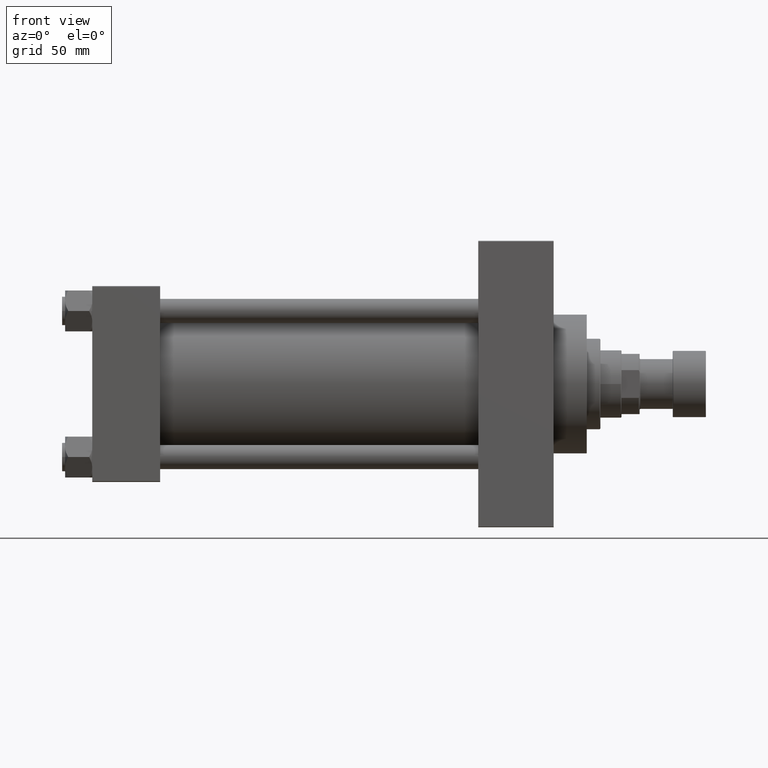
[diagram: clean part render]
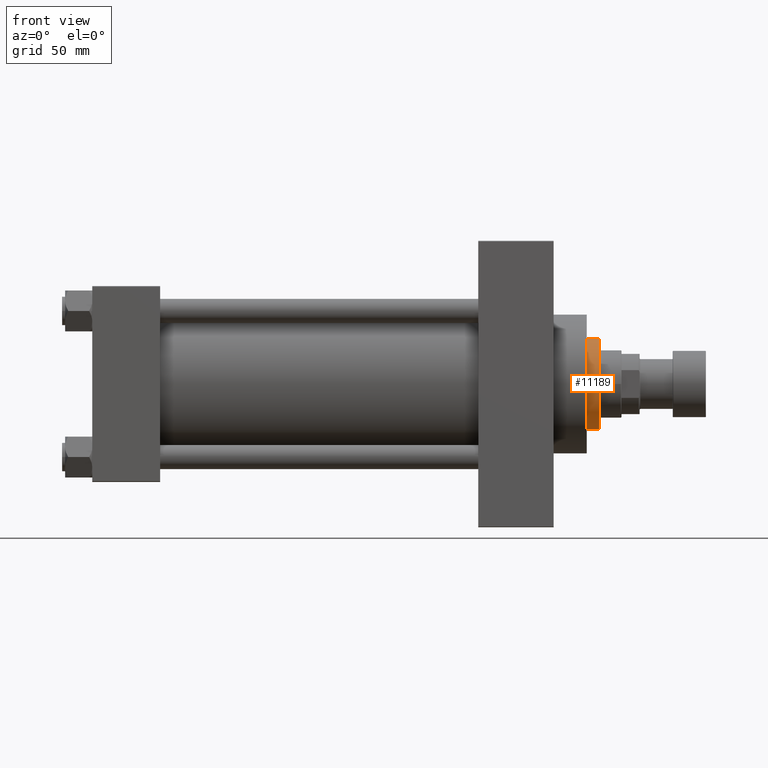
[diagram: same view with one face highlighted and labeled with its STEP entity id]
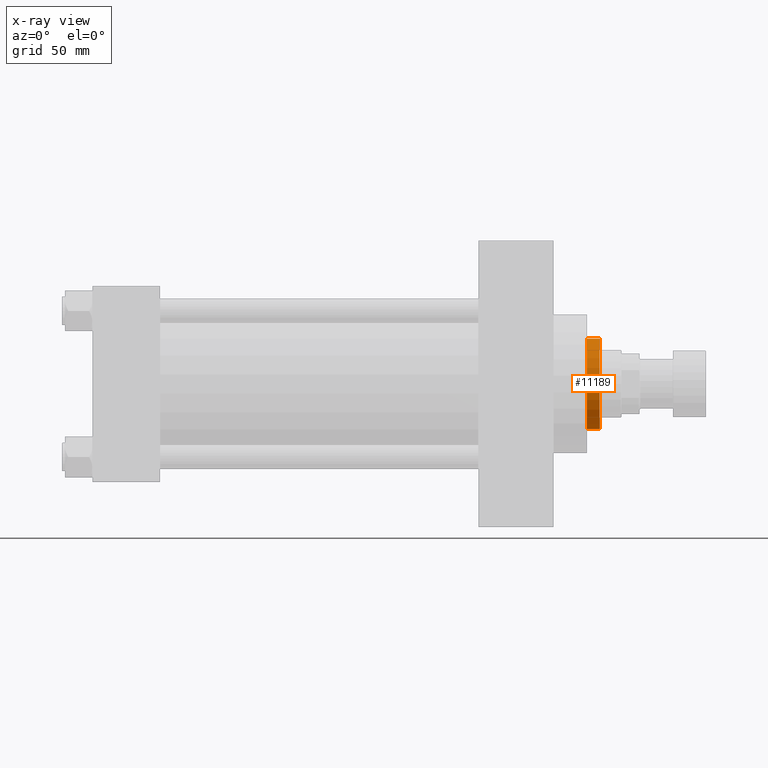
[diagram: x-ray of the same camera — body ghosted, the highlighted face saturated]
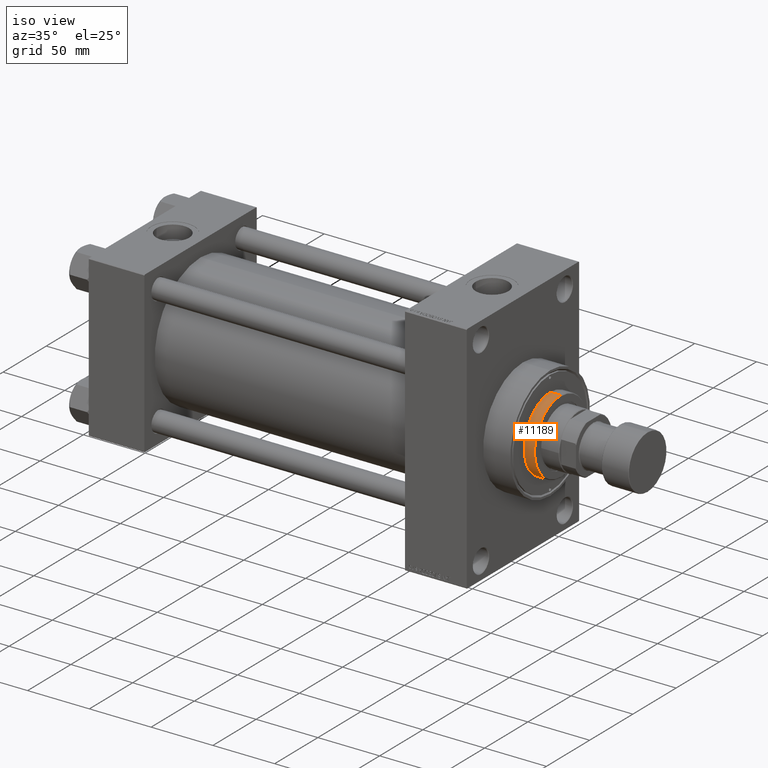
[diagram: same view with one face highlighted and labeled with its STEP entity id]
A machine part, front view. The second image highlights one B-rep face of the part: STEP entity #11189.
The next image is the same camera in x-ray: the body ghosted, the highlighted face saturated — about 0% of this face is hidden behind the body in this view.
A second angle (iso view) of the same face is appended — the face is thin or edge-on in the first view.
In plain terms, the highlighted cylindrical surface (partial cylindrical patch) has radius 30 mm, axis along (-1, 0, 0).
Its self-contained STEP definition (entity closure, byte-faithful):
#1364 = VERTEX_POINT ( 'NONE', #25501 ) ;
#6305 = CARTESIAN_POINT ( 'NONE',  ( 30.00000000000000000, 3.673940397442059178E-15, 52.25999999999999801 ) ) ;
#7101 = DIRECTION ( 'NONE',  ( -0.000000000000000000, -0.000000000000000000, -1.000000000000000000 ) ) ;
#10137 = ORIENTED_EDGE ( 'NONE', *, *, #33069, .F. ) ;
#11189 = ADVANCED_FACE ( 'NONE', ( #30300 ), #22253, .T. ) ;
#11348 = EDGE_CURVE ( 'NONE', #11502, #1364, #18217, .T. ) ;
#11502 = VERTEX_POINT ( 'NONE', #37741 ) ;
#11807 = VERTEX_POINT ( 'NONE', #43279 ) ;
#14315 = AXIS2_PLACEMENT_3D ( 'NONE', #44378, #33369, #25575 ) ;
#14866 = VERTEX_POINT ( 'NONE', #14929 ) ;
#14929 = CARTESIAN_POINT ( 'NONE',  ( -30.00000000000000000, 0.000000000000000000, 51.75999999999999091 ) ) ;
#16441 = ORIENTED_EDGE ( 'NONE', *, *, #31722, .T. ) ;
#17440 = ORIENTED_EDGE ( 'NONE', *, *, #44957, .T. ) ;
#18217 = CIRCLE ( 'NONE', #14315, 30.00000000000000000 ) ;
#18806 = CARTESIAN_POINT ( 'NONE',  ( 0.000000000000000000, 0.000000000000000000, 52.25999999999999801 ) ) ;
#20693 = AXIS2_PLACEMENT_3D ( 'NONE', #20852, #46524, #43088 ) ;
#20852 = CARTESIAN_POINT ( 'NONE',  ( 0.000000000000000000, 0.000000000000000000, 51.75999999999999091 ) ) ;
#21198 = LINE ( 'NONE', #6305, #30517 ) ;
#22095 = AXIS2_PLACEMENT_3D ( 'NONE', #18806, #7101, #26410 ) ;
#22253 = CYLINDRICAL_SURFACE ( 'NONE', #22095, 30.00000000000000000 ) ;
#22294 = ORIENTED_EDGE ( 'NONE', *, *, #11348, .T. ) ;
#25501 = CARTESIAN_POINT ( 'NONE',  ( -30.00000000000000000, 0.000000000000000000, 43.25999999999999801 ) ) ;
#25575 = DIRECTION ( 'NONE',  ( 1.000000000000000000, 0.000000000000000000, 0.000000000000000000 ) ) ;
#26410 = DIRECTION ( 'NONE',  ( -1.000000000000000000, 0.000000000000000000, 0.000000000000000000 ) ) ;
#30176 = CARTESIAN_POINT ( 'NONE',  ( -30.00000000000000000, 0.000000000000000000, 52.25999999999999801 ) ) ;
#30300 = FACE_OUTER_BOUND ( 'NONE', #47272, .T. ) ;
#30517 = VECTOR ( 'NONE', #32456, 1000.000000000000000 ) ;
#31722 = EDGE_CURVE ( 'NONE', #11807, #11502, #21198, .T. ) ;
#32456 = DIRECTION ( 'NONE',  ( -0.000000000000000000, -0.000000000000000000, -1.000000000000000000 ) ) ;
#33069 = EDGE_CURVE ( 'NONE', #14866, #1364, #37738, .T. ) ;
#33369 = DIRECTION ( 'NONE',  ( 0.000000000000000000, 0.000000000000000000, 1.000000000000000000 ) ) ;
#37738 = LINE ( 'NONE', #30176, #39929 ) ;
#37741 = CARTESIAN_POINT ( 'NONE',  ( 30.00000000000000000, 3.673940397442059178E-15, 43.25999999999999801 ) ) ;
#37869 = CIRCLE ( 'NONE', #20693, 30.00000000000000000 ) ;
#39929 = VECTOR ( 'NONE', #41893, 1000.000000000000000 ) ;
#41893 = DIRECTION ( 'NONE',  ( -0.000000000000000000, -0.000000000000000000, -1.000000000000000000 ) ) ;
#43088 = DIRECTION ( 'NONE',  ( 1.000000000000000000, 0.000000000000000000, 0.000000000000000000 ) ) ;
#43279 = CARTESIAN_POINT ( 'NONE',  ( 30.00000000000000000, 3.673940397442059178E-15, 51.75999999999999091 ) ) ;
#44378 = CARTESIAN_POINT ( 'NONE',  ( 0.000000000000000000, 0.000000000000000000, 43.25999999999999801 ) ) ;
#44957 = EDGE_CURVE ( 'NONE', #14866, #11807, #37869, .T. ) ;
#46524 = DIRECTION ( 'NONE',  ( 0.000000000000000000, 0.000000000000000000, -1.000000000000000000 ) ) ;
#47272 = EDGE_LOOP ( 'NONE', ( #17440, #16441, #22294, #10137 ) ) ;